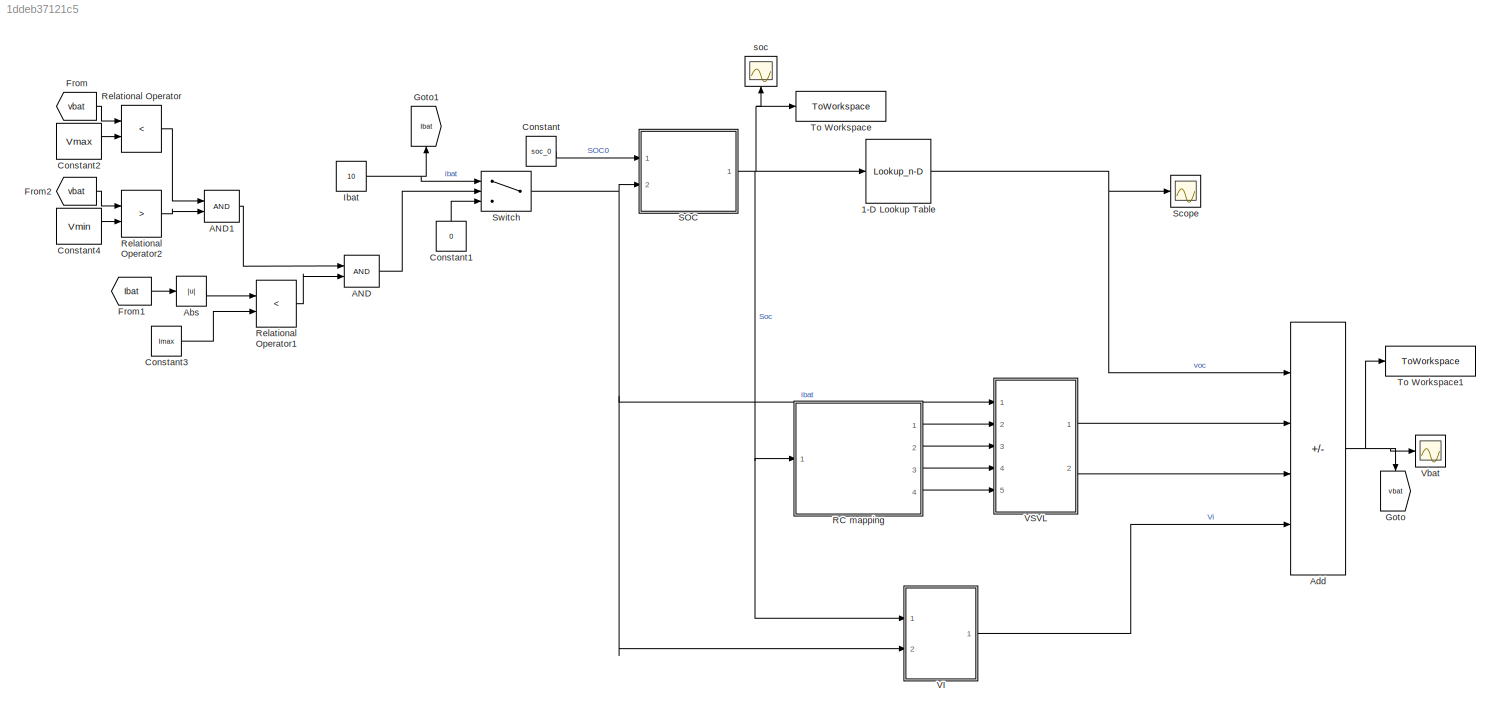
MODEL slx_1ddeb37121c5
KIND model
CONFIG AbsTol = auto
CONFIG EnableMultiTasking = off
CONFIG FixedStep = 1e-3
CONFIG MaxStep = auto
CONFIG MinStep = auto
CONFIG RelTol = 1e-3
CONFIG SampleTimeConstraint = Unconstrained
CONFIG SolverName = VariableStepAuto
CONFIG StartTime = 0.0
CONFIG StopTime = 3600
BLOCK [Lookup_n-D] 1-D Lookup Table
  BreakpointsForDimension1 = soc_voc
  InputPortMap = u0
  InternalRulePriority = Speed
  NumberOfTableDimensions = 1
  Ports = [1, 1]
  RndMeth = Simplest
  Table = voc
BLOCK [Logic] AND
  AllPortsSameDT = off
  IconShape = distinctive
  OutDataTypeStr = boolean
  Ports = [2, 1]
BLOCK [Logic] AND1
  AllPortsSameDT = off
  IconShape = distinctive
  OutDataTypeStr = boolean
  Ports = [2, 1]
BLOCK [Abs] Abs
  SaturateOnIntegerOverflow = off
BLOCK [Sum] Add
  IconShape = rectangular
  Inputs = +---
  Ports = [4, 1]
BLOCK [Constant] Constant
  Value = soc_0
BLOCK [Constant] Constant1
  NameLocation = right
  Value = 0
BLOCK [Constant] Constant2
  Value = Vmax
BLOCK [Constant] Constant3
  Value = Imax
BLOCK [Constant] Constant4
  Value = Vmin
BLOCK [From] From
  GotoTag = vbat
BLOCK [From] From1
  GotoTag = Ibat
BLOCK [From] From2
  GotoTag = vbat
BLOCK [Goto] Goto
  GotoTag = vbat
  NameLocation = left
BLOCK [Goto] Goto1
  GotoTag = Ibat
  NameLocation = right
BLOCK [Constant] Ibat
  Value = 10
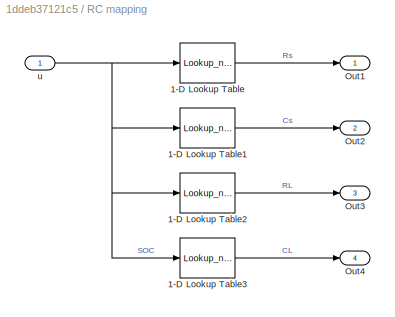
BLOCK [SubSystem] RC mapping
  Ports = [1, 4]
  RequestExecContextInheritance = off
BLOCK [Lookup_n-D] RC mapping/1-D Lookup Table
  BreakpointsForDimension1 = soc_rs
  InputPortMap = u0
  InternalRulePriority = Speed
  NumberOfTableDimensions = 1
  Ports = [1, 1]
  RndMeth = Simplest
  Table = rs
BLOCK [Lookup_n-D] RC mapping/1-D Lookup Table1
  BreakpointsForDimension1 = soc_cs
  InputPortMap = u0
  InternalRulePriority = Speed
  NumberOfTableDimensions = 1
  Ports = [1, 1]
  RndMeth = Simplest
  Table = cs
BLOCK [Lookup_n-D] RC mapping/1-D Lookup Table2
  BreakpointsForDimension1 = soc_rl
  InputPortMap = u0
  InternalRulePriority = Speed
  NumberOfTableDimensions = 1
  Ports = [1, 1]
  RndMeth = Simplest
  Table = rl
BLOCK [Lookup_n-D] RC mapping/1-D Lookup Table3
  BreakpointsForDimension1 = soc_cl
  InputPortMap = u0
  InternalRulePriority = Speed
  NumberOfTableDimensions = 1
  Ports = [1, 1]
  RndMeth = Simplest
  Table = cl
BLOCK [Outport] RC mapping/Out1
  IconDisplay = Signal name
BLOCK [Outport] RC mapping/Out2
  IconDisplay = Signal name
  Port = 2
BLOCK [Outport] RC mapping/Out3
  IconDisplay = Signal name
  Port = 3
BLOCK [Outport] RC mapping/Out4
  IconDisplay = Signal name
  Port = 4
BLOCK [Inport] RC mapping/u
  IconDisplay = Signal name
BLOCK [RelationalOperator] Relational Operator
  InputSameDT = off
  Operator = <
  OutDataTypeStr = boolean
  Ports = [2, 1]
  RndMeth = Simplest
BLOCK [RelationalOperator] Relational Operator1
  InputSameDT = off
  Operator = <
  OutDataTypeStr = boolean
  Ports = [2, 1]
  RndMeth = Simplest
BLOCK [RelationalOperator] Relational Operator2
  InputSameDT = off
  Operator = >
  OutDataTypeStr = boolean
  Ports = [2, 1]
  RndMeth = Simplest
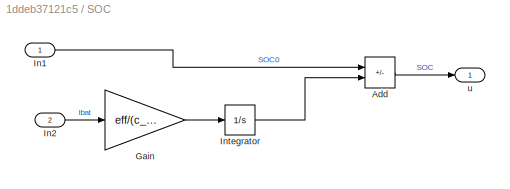
BLOCK [SubSystem] SOC
  Ports = [2, 1]
  RequestExecContextInheritance = off
BLOCK [Sum] SOC/Add
  IconShape = rectangular
  Inputs = +-
  Ports = [2, 1]
BLOCK [Gain] SOC/Gain
  Gain = eff/(c_bat*36)
BLOCK [Inport] SOC/In1
  IconDisplay = Signal name
BLOCK [Inport] SOC/In2
  IconDisplay = Signal name
  Port = 2
BLOCK [Integrator] SOC/Integrator
  Ports = [1, 1]
BLOCK [Outport] SOC/u
  IconDisplay = Signal name
BLOCK [Scope] Scope
  Floating = off
  NumInputPorts = 1
  Ports = [1]
  ScopeSpecificationString = Simulink.scopes.TimeScopeBlockCfg('CurrentConfiguration', extmgr.ConfigurationSet(extmgr.Configuration('Core','General UI',true),extmgr.Configuration('Core','Source UI',true),extmgr.Configuration('Sources','WiredSimulink',true,'DataLoggingVariableName','ScopeData2'),extmgr.Configuration('Visuals','Time Domain',true,'SerializedDisplays',{struct('MinYLimReal','2.91382','MaxYLimReal','3.13337','YLabe...<+1389ch>
BLOCK [Switch] Switch
  Criteria = u2 > Threshold
  InputSameDT = off
  SaturateOnIntegerOverflow = off
BLOCK [ToWorkspace] To Workspace
  FixptAsFi = on
  MaxDataPoints = inf
  Ports = [1]
  SampleTime = -1
  SaveFormat = Timeseries
  VariableName = socsim
BLOCK [ToWorkspace] To Workspace1
  FixptAsFi = on
  MaxDataPoints = inf
  Ports = [1]
  SampleTime = -1
  SaveFormat = Timeseries
  VariableName = vbat
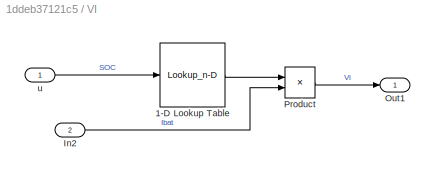
BLOCK [SubSystem] VI
  Ports = [2, 1]
  RequestExecContextInheritance = off
BLOCK [Lookup_n-D] VI/1-D Lookup Table
  BreakpointsForDimension1 = soc_ri
  InputPortMap = u0
  InternalRulePriority = Speed
  NumberOfTableDimensions = 1
  Ports = [1, 1]
  RndMeth = Simplest
  Table = ri
BLOCK [Inport] VI/In2
  IconDisplay = Signal name
  Port = 2
BLOCK [Outport] VI/Out1
  IconDisplay = Signal name
BLOCK [Product] VI/Product
  Ports = [2, 1]
BLOCK [Inport] VI/u
  IconDisplay = Signal name
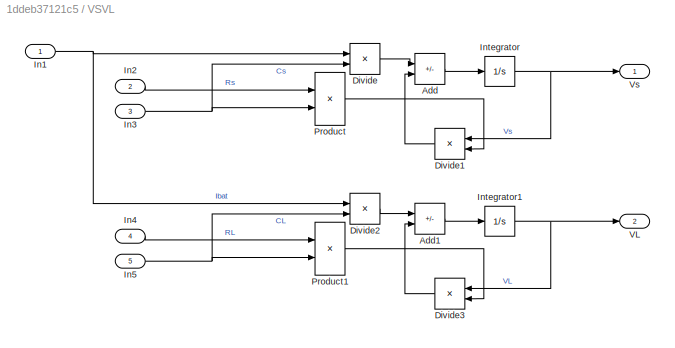
BLOCK [SubSystem] VSVL
  Ports = [5, 2]
  RequestExecContextInheritance = off
BLOCK [Sum] VSVL/Add
  IconShape = rectangular
  Inputs = +-
  Ports = [2, 1]
BLOCK [Sum] VSVL/Add1
  IconShape = rectangular
  Inputs = +-
  Ports = [2, 1]
BLOCK [Product] VSVL/Divide
  Inputs = */
  Ports = [2, 1]
BLOCK [Product] VSVL/Divide1
  Inputs = */
  NameLocation = top
  Ports = [2, 1]
BLOCK [Product] VSVL/Divide2
  Inputs = */
  Ports = [2, 1]
BLOCK [Product] VSVL/Divide3
  Inputs = */
  NameLocation = top
  Ports = [2, 1]
BLOCK [Inport] VSVL/In1
  IconDisplay = Signal name
BLOCK [Inport] VSVL/In2
  IconDisplay = Signal name
  Port = 2
BLOCK [Inport] VSVL/In3
  IconDisplay = Signal name
  Port = 3
BLOCK [Inport] VSVL/In4
  IconDisplay = Signal name
  Port = 4
BLOCK [Inport] VSVL/In5
  IconDisplay = Signal name
  Port = 5
BLOCK [Integrator] VSVL/Integrator
  Ports = [1, 1]
BLOCK [Integrator] VSVL/Integrator1
  Ports = [1, 1]
BLOCK [Product] VSVL/Product
  Ports = [2, 1]
BLOCK [Product] VSVL/Product1
  Ports = [2, 1]
BLOCK [Outport] VSVL/VL
  Port = 2
BLOCK [Outport] VSVL/Vs
BLOCK [Scope] Vbat
  Floating = off
  NumInputPorts = 1
  Ports = [1]
  ScopeSpecificationString = Simulink.scopes.TimeScopeBlockCfg('CurrentConfiguration', extmgr.ConfigurationSet(extmgr.Configuration('Core','General UI',true),extmgr.Configuration('Core','Source UI',true),extmgr.Configuration('Sources','WiredSimulink',true),extmgr.Configuration('Visuals','Time Domain',true,'SerializedDisplays',{struct('MinYLimReal','2.92242','MaxYLimReal','3.16461','YLabelReal','','MinYLimMag','2.92242','MaxYL...<+1402ch>
BLOCK [Scope] soc
  Floating = off
  NameLocation = right
  NumInputPorts = 1
  Ports = [1]
  ScopeSpecificationString = Simulink.scopes.TimeScopeBlockCfg('CurrentConfiguration', extmgr.ConfigurationSet(extmgr.Configuration('Core','General UI',true),extmgr.Configuration('Core','Source UI',true),extmgr.Configuration('Sources','WiredSimulink',true,'DataLoggingVariableName','ScopeData1'),extmgr.Configuration('Visuals','Time Domain',true,'SerializedDisplays',{struct('MinYLimReal','-0.66532','MaxYLimReal','5.9879','YLabe...<+1710ch>
NET 1-D Lookup Table:1 -> Add:1, Scope:1
LINE AND1:1 -> AND:1
LINE AND:1 -> Switch:2
LINE Abs:1 -> Relational Operator1:1
NET Add:1 -> Goto:1, To Workspace1:1, Vbat:1
LINE Constant1:1 -> Switch:3
LINE Constant2:1 -> Relational Operator:2
LINE Constant3:1 -> Relational Operator1:2
LINE Constant4:1 -> Relational Operator2:2
LINE Constant:1 -> SOC:1
LINE From1:1 -> Abs:1
LINE From2:1 -> Relational Operator2:1
LINE From:1 -> Relational Operator:1
NET Ibat:1 -> Goto1:1, Switch:1
LINE RC mapping/1-D Lookup Table1:1 -> RC mapping/Out2:1
LINE RC mapping/1-D Lookup Table2:1 -> RC mapping/Out3:1
LINE RC mapping/1-D Lookup Table3:1 -> RC mapping/Out4:1
LINE RC mapping/1-D Lookup Table:1 -> RC mapping/Out1:1
NET RC mapping/u:1 -> RC mapping/1-D Lookup Table1:1, RC mapping/1-D Lookup Table2:1, RC mapping/1-D Lookup Table3:1, RC mapping/1-D Lookup Table:1
LINE RC mapping:1 -> VSVL:2
LINE RC mapping:2 -> VSVL:3
LINE RC mapping:3 -> VSVL:4
LINE RC mapping:4 -> VSVL:5
LINE Relational Operator1:1 -> AND:2
LINE Relational Operator2:1 -> AND1:2
LINE Relational Operator:1 -> AND1:1
LINE SOC/Add:1 -> SOC/u:1
LINE SOC/Gain:1 -> SOC/Integrator:1
LINE SOC/In1:1 -> SOC/Add:1
LINE SOC/In2:1 -> SOC/Gain:1
LINE SOC/Integrator:1 -> SOC/Add:2
NET SOC:1 -> 1-D Lookup Table:1, RC mapping:1, To Workspace:1, VI:1, soc:1
NET Switch:1 -> SOC:2, VI:2, VSVL:1
LINE VI/1-D Lookup Table:1 -> VI/Product:1
LINE VI/In2:1 -> VI/Product:2
LINE VI/Product:1 -> VI/Out1:1
LINE VI/u:1 -> VI/1-D Lookup Table:1
LINE VI:1 -> Add:4
LINE VSVL/Add1:1 -> VSVL/Integrator1:1
LINE VSVL/Add:1 -> VSVL/Integrator:1
LINE VSVL/Divide1:1 -> VSVL/Add:2
LINE VSVL/Divide2:1 -> VSVL/Add1:1
LINE VSVL/Divide3:1 -> VSVL/Add1:2
LINE VSVL/Divide:1 -> VSVL/Add:1
NET VSVL/In1:1 -> VSVL/Divide2:1, VSVL/Divide:1
LINE VSVL/In2:1 -> VSVL/Product:1
NET VSVL/In3:1 -> VSVL/Divide:2, VSVL/Product:2
LINE VSVL/In4:1 -> VSVL/Product1:1
NET VSVL/In5:1 -> VSVL/Divide2:2, VSVL/Product1:2
NET VSVL/Integrator1:1 -> VSVL/Divide3:1, VSVL/VL:1
NET VSVL/Integrator:1 -> VSVL/Divide1:1, VSVL/Vs:1
LINE VSVL/Product1:1 -> VSVL/Divide3:2
LINE VSVL/Product:1 -> VSVL/Divide1:2
LINE VSVL:1 -> Add:2
LINE VSVL:2 -> Add:3
note: NET lines group one-source signal fan-out (src -> all destinations, sorted); 1:1 wires keep LINE
